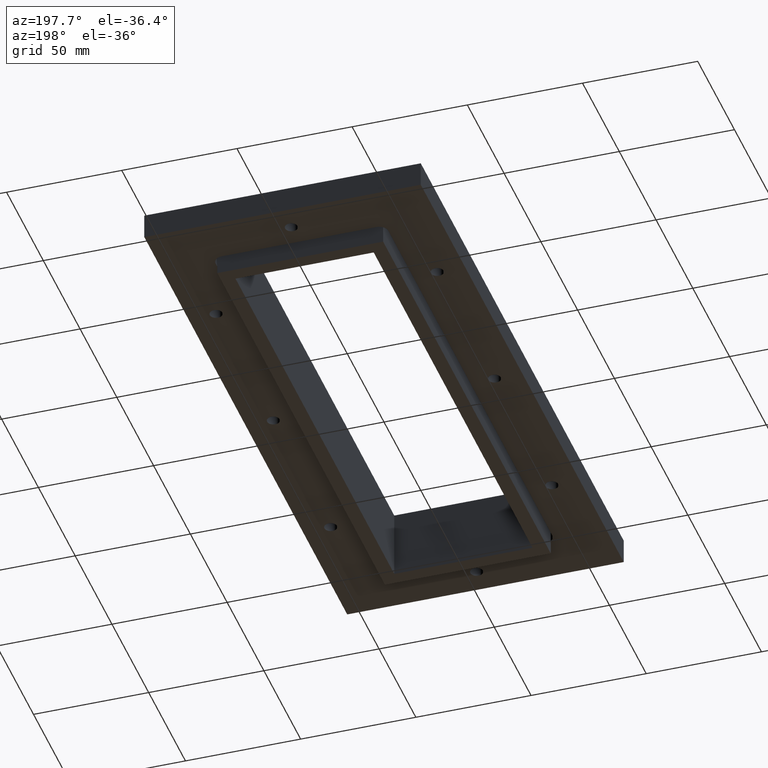
[diagram: clean part render]
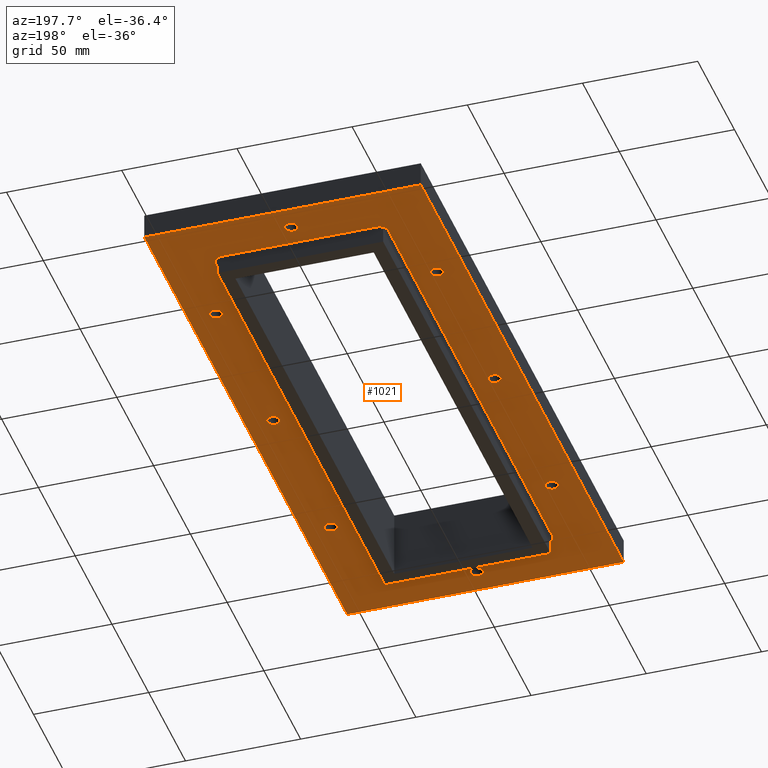
[diagram: same view with one face highlighted and labeled with its STEP entity id]
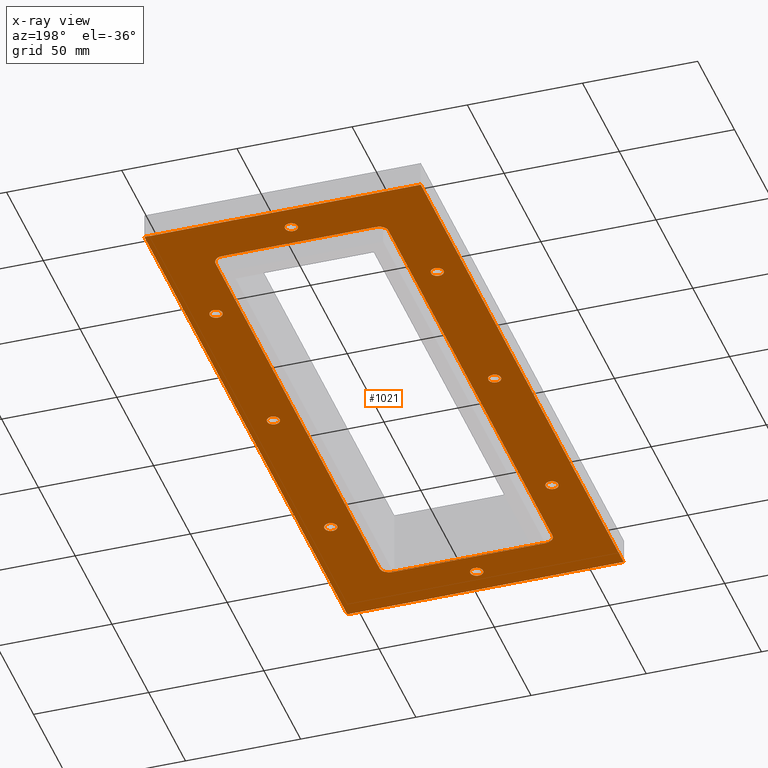
[diagram: x-ray of the same camera — body ghosted, the highlighted face saturated]
A machine part, auxiliary view. The second image highlights one B-rep face of the part: STEP entity #1021.
The next image is the same camera in x-ray: the body ghosted, the highlighted face saturated — about 0% of this face is hidden behind the body in this view.
In plain terms, the highlighted planar face has unit normal (0, -0, -1).
Its self-contained STEP definition (entity closure, byte-faithful):
#59=FACE_BOUND('',#226,.T.);
#60=FACE_BOUND('',#227,.T.);
#61=FACE_BOUND('',#228,.T.);
#62=FACE_BOUND('',#229,.T.);
#63=FACE_BOUND('',#230,.T.);
#64=FACE_BOUND('',#231,.T.);
#65=FACE_BOUND('',#232,.T.);
#66=FACE_BOUND('',#233,.T.);
#67=FACE_BOUND('',#234,.T.);
#105=PLANE('',#1132);
#155=FACE_OUTER_BOUND('',#225,.T.);
#225=EDGE_LOOP('',(#913,#914,#915,#916));
#226=EDGE_LOOP('',(#917));
#227=EDGE_LOOP('',(#918));
#228=EDGE_LOOP('',(#919));
#229=EDGE_LOOP('',(#920));
#230=EDGE_LOOP('',(#921));
#231=EDGE_LOOP('',(#922));
#232=EDGE_LOOP('',(#923));
#233=EDGE_LOOP('',(#924));
#234=EDGE_LOOP('',(#925,#926,#927,#928,#929,#930,#931,#932));
#312=LINE('',#1618,#404);
#316=LINE('',#1630,#408);
#320=LINE('',#1642,#412);
#324=LINE('',#1652,#416);
#327=LINE('',#1660,#419);
#330=LINE('',#1666,#422);
#333=LINE('',#1672,#425);
#336=LINE('',#1676,#428);
#404=VECTOR('',#1347,10.);
#408=VECTOR('',#1359,10.);
#412=VECTOR('',#1371,10.);
#416=VECTOR('',#1383,10.);
#419=VECTOR('',#1388,10.);
#422=VECTOR('',#1393,10.);
#425=VECTOR('',#1398,10.);
#428=VECTOR('',#1403,10.);
#446=CIRCLE('',#1090,2.75);
#448=CIRCLE('',#1093,2.75);
#450=CIRCLE('',#1096,2.75);
#452=CIRCLE('',#1099,2.75);
#454=CIRCLE('',#1102,2.75);
#456=CIRCLE('',#1105,2.75);
#458=CIRCLE('',#1108,2.75);
#460=CIRCLE('',#1111,2.75);
#462=CIRCLE('',#1114,3.99999999999997);
#464=CIRCLE('',#1118,3.99999999999995);
#466=CIRCLE('',#1122,4.00000000000002);
#468=CIRCLE('',#1126,4.);
#518=VERTEX_POINT('',#1560);
#520=VERTEX_POINT('',#1566);
#522=VERTEX_POINT('',#1572);
#524=VERTEX_POINT('',#1578);
#526=VERTEX_POINT('',#1584);
#528=VERTEX_POINT('',#1590);
#530=VERTEX_POINT('',#1596);
#532=VERTEX_POINT('',#1602);
#535=VERTEX_POINT('',#1609);
#536=VERTEX_POINT('',#1611);
#538=VERTEX_POINT('',#1617);
#540=VERTEX_POINT('',#1623);
#542=VERTEX_POINT('',#1629);
#544=VERTEX_POINT('',#1635);
#546=VERTEX_POINT('',#1641);
#548=VERTEX_POINT('',#1647);
#551=VERTEX_POINT('',#1657);
#552=VERTEX_POINT('',#1659);
#554=VERTEX_POINT('',#1665);
#556=VERTEX_POINT('',#1671);
#631=EDGE_CURVE('',#518,#518,#446,.T.);
#634=EDGE_CURVE('',#520,#520,#448,.T.);
#637=EDGE_CURVE('',#522,#522,#450,.T.);
#640=EDGE_CURVE('',#524,#524,#452,.T.);
#643=EDGE_CURVE('',#526,#526,#454,.T.);
#646=EDGE_CURVE('',#528,#528,#456,.T.);
#649=EDGE_CURVE('',#530,#530,#458,.T.);
#652=EDGE_CURVE('',#532,#532,#460,.T.);
#655=EDGE_CURVE('',#536,#535,#462,.T.);
#658=EDGE_CURVE('',#538,#536,#312,.T.);
#661=EDGE_CURVE('',#540,#538,#464,.T.);
#664=EDGE_CURVE('',#542,#540,#316,.T.);
#667=EDGE_CURVE('',#544,#542,#466,.T.);
#670=EDGE_CURVE('',#546,#544,#320,.T.);
#673=EDGE_CURVE('',#548,#546,#468,.T.);
#676=EDGE_CURVE('',#535,#548,#324,.T.);
#679=EDGE_CURVE('',#552,#551,#327,.T.);
#682=EDGE_CURVE('',#554,#552,#330,.T.);
#685=EDGE_CURVE('',#556,#554,#333,.T.);
#688=EDGE_CURVE('',#551,#556,#336,.T.);
#913=ORIENTED_EDGE('',*,*,#688,.T.);
#914=ORIENTED_EDGE('',*,*,#685,.T.);
#915=ORIENTED_EDGE('',*,*,#682,.T.);
#916=ORIENTED_EDGE('',*,*,#679,.T.);
#917=ORIENTED_EDGE('',*,*,#631,.T.);
#918=ORIENTED_EDGE('',*,*,#634,.T.);
#919=ORIENTED_EDGE('',*,*,#637,.T.);
#920=ORIENTED_EDGE('',*,*,#640,.T.);
#921=ORIENTED_EDGE('',*,*,#643,.T.);
#922=ORIENTED_EDGE('',*,*,#646,.T.);
#923=ORIENTED_EDGE('',*,*,#649,.T.);
#924=ORIENTED_EDGE('',*,*,#652,.T.);
#925=ORIENTED_EDGE('',*,*,#676,.T.);
#926=ORIENTED_EDGE('',*,*,#673,.T.);
#927=ORIENTED_EDGE('',*,*,#670,.T.);
#928=ORIENTED_EDGE('',*,*,#667,.T.);
#929=ORIENTED_EDGE('',*,*,#664,.T.);
#930=ORIENTED_EDGE('',*,*,#661,.T.);
#931=ORIENTED_EDGE('',*,*,#658,.T.);
#932=ORIENTED_EDGE('',*,*,#655,.T.);
#1021=ADVANCED_FACE('',(#155,#59,#60,#61,#62,#63,#64,#65,#66,#67),#105,
 .T.);
#1090=AXIS2_PLACEMENT_3D('',#1562,#1285,#1286);
#1093=AXIS2_PLACEMENT_3D('',#1568,#1292,#1293);
#1096=AXIS2_PLACEMENT_3D('',#1574,#1299,#1300);
#1099=AXIS2_PLACEMENT_3D('',#1580,#1306,#1307);
#1102=AXIS2_PLACEMENT_3D('',#1586,#1313,#1314);
#1105=AXIS2_PLACEMENT_3D('',#1592,#1320,#1321);
#1108=AXIS2_PLACEMENT_3D('',#1598,#1327,#1328);
#1111=AXIS2_PLACEMENT_3D('',#1604,#1334,#1335);
#1114=AXIS2_PLACEMENT_3D('',#1612,#1341,#1342);
#1118=AXIS2_PLACEMENT_3D('',#1624,#1353,#1354);
#1122=AXIS2_PLACEMENT_3D('',#1636,#1365,#1366);
#1126=AXIS2_PLACEMENT_3D('',#1648,#1377,#1378);
#1132=AXIS2_PLACEMENT_3D('',#1677,#1404,#1405);
#1285=DIRECTION('center_axis',(0.,1.38777878078145E-16,1.));
#1286=DIRECTION('ref_axis',(-1.,0.,0.));
#1292=DIRECTION('center_axis',(0.,1.38777878078145E-16,1.));
#1293=DIRECTION('ref_axis',(-1.,0.,0.));
#1299=DIRECTION('center_axis',(0.,1.38777878078145E-16,1.));
#1300=DIRECTION('ref_axis',(-1.,0.,0.));
#1306=DIRECTION('center_axis',(0.,1.38777878078145E-16,1.));
#1307=DIRECTION('ref_axis',(1.,0.,0.));
#1313=DIRECTION('center_axis',(0.,1.38777878078145E-16,1.));
#1314=DIRECTION('ref_axis',(1.,0.,0.));
#1320=DIRECTION('center_axis',(0.,1.38777878078145E-16,1.));
#1321=DIRECTION('ref_axis',(1.,0.,0.));
#1327=DIRECTION('center_axis',(0.,1.38777878078145E-16,1.));
#1328=DIRECTION('ref_axis',(1.,0.,0.));
#1334=DIRECTION('center_axis',(0.,1.38777878078145E-16,1.));
#1335=DIRECTION('ref_axis',(1.,0.,0.));
#1341=DIRECTION('center_axis',(0.,1.38777878078145E-16,1.));
#1342=DIRECTION('ref_axis',(-1.,0.,0.));
#1347=DIRECTION('',(1.,0.,0.));
#1353=DIRECTION('center_axis',(0.,1.38777878078145E-16,1.));
#1354=DIRECTION('ref_axis',(0.,1.,-1.38777878078145E-16));
#1359=DIRECTION('',(3.18629029488834E-16,-1.,1.38777878078145E-16));
#1365=DIRECTION('center_axis',(0.,1.38777878078145E-16,1.));
#1366=DIRECTION('ref_axis',(1.,5.55111512312575E-15,-7.7037197775489E-31));
#1371=DIRECTION('',(-1.,0.,0.));
#1377=DIRECTION('center_axis',(0.,1.38777878078145E-16,1.));
#1378=DIRECTION('ref_axis',(1.11022302462516E-15,-1.,1.38777878078145E-16));
#1383=DIRECTION('',(2.38971772116626E-16,1.,-1.38777878078145E-16));
#1388=DIRECTION('',(1.93082265152201E-16,1.,-1.38777878078145E-16));
#1393=DIRECTION('',(-1.,0.,0.));
#1398=DIRECTION('',(-9.65411325761006E-17,-1.,1.38777878078145E-16));
#1403=DIRECTION('',(1.,0.,0.));
#1404=DIRECTION('center_axis',(0.,-1.38777878078145E-16,-1.));
#1405=DIRECTION('ref_axis',(-1.,0.,0.));
#1560=CARTESIAN_POINT('',(50.75,78.,-8.00000000000001));
#1562=CARTESIAN_POINT('Origin',(48.,78.,-8.00000000000001));
#1566=CARTESIAN_POINT('',(50.75,0.,-8.00000000000001));
#1568=CARTESIAN_POINT('Origin',(48.,-3.33066907387548E-15,-8.00000000000001));
#1572=CARTESIAN_POINT('',(50.75,-78.,-8.00000000000001));
#1574=CARTESIAN_POINT('Origin',(48.,-78.,-8.00000000000001));
#1578=CARTESIAN_POINT('',(-50.75,78.,-8.00000000000001));
#1580=CARTESIAN_POINT('Origin',(-48.,78.,-8.00000000000001));
#1584=CARTESIAN_POINT('',(-50.75,0.,-8.00000000000001));
#1586=CARTESIAN_POINT('Origin',(-48.,-3.33066907387548E-15,-8.00000000000001));
#1590=CARTESIAN_POINT('',(-50.75,-78.,-8.00000000000001));
#1592=CARTESIAN_POINT('Origin',(-48.,-78.,-8.00000000000001));
#1596=CARTESIAN_POINT('',(-2.75000000000001,-126.,-8.00000000000001));
#1598=CARTESIAN_POINT('Origin',(-8.88178419700125E-15,-126.,-8.00000000000001));
#1602=CARTESIAN_POINT('',(-2.75000000000002,126.,-8.00000000000001));
#1604=CARTESIAN_POINT('Origin',(-1.77635683940025E-14,126.,-8.00000000000001));
#1609=CARTESIAN_POINT('',(37.5,-111.5,-8.));
#1611=CARTESIAN_POINT('',(33.5,-115.5,-8.));
#1612=CARTESIAN_POINT('Origin',(33.5,-111.5,-8.));
#1617=CARTESIAN_POINT('',(-33.4999999999997,-115.5,-8.));
#1618=CARTESIAN_POINT('',(-33.4999999999997,-115.5,-8.));
#1623=CARTESIAN_POINT('',(-37.4999999999997,-111.5,-8.));
#1624=CARTESIAN_POINT('Origin',(-33.4999999999997,-111.5,-8.));
#1629=CARTESIAN_POINT('',(-37.4999999999998,111.5,-8.00000000000003));
#1630=CARTESIAN_POINT('',(-37.4999999999998,111.5,-8.00000000000003));
#1635=CARTESIAN_POINT('',(-33.4999999999997,115.5,-8.00000000000003));
#1636=CARTESIAN_POINT('Origin',(-33.4999999999997,111.5,-8.00000000000003));
#1641=CARTESIAN_POINT('',(33.5,115.5,-8.00000000000003));
#1642=CARTESIAN_POINT('',(33.5,115.5,-8.00000000000003));
#1647=CARTESIAN_POINT('',(37.5,111.5,-8.00000000000003));
#1648=CARTESIAN_POINT('Origin',(33.5,111.5,-8.00000000000003));
#1652=CARTESIAN_POINT('',(37.5,-111.5,-8.));
#1657=CARTESIAN_POINT('',(-60.,138.,-8.00000000000003));
#1659=CARTESIAN_POINT('',(-60.,-138.,-8.));
#1660=CARTESIAN_POINT('',(-60.,-138.,-8.));
#1665=CARTESIAN_POINT('',(60.,-138.,-8.));
#1666=CARTESIAN_POINT('',(60.,-138.,-8.));
#1671=CARTESIAN_POINT('',(60.,138.,-8.00000000000003));
#1672=CARTESIAN_POINT('',(60.,138.,-8.00000000000003));
#1676=CARTESIAN_POINT('',(-60.,138.,-8.00000000000003));
#1677=CARTESIAN_POINT('Origin',(-8.88178419700125E-15,1.77635683940025E-14,
-8.00000000000001));